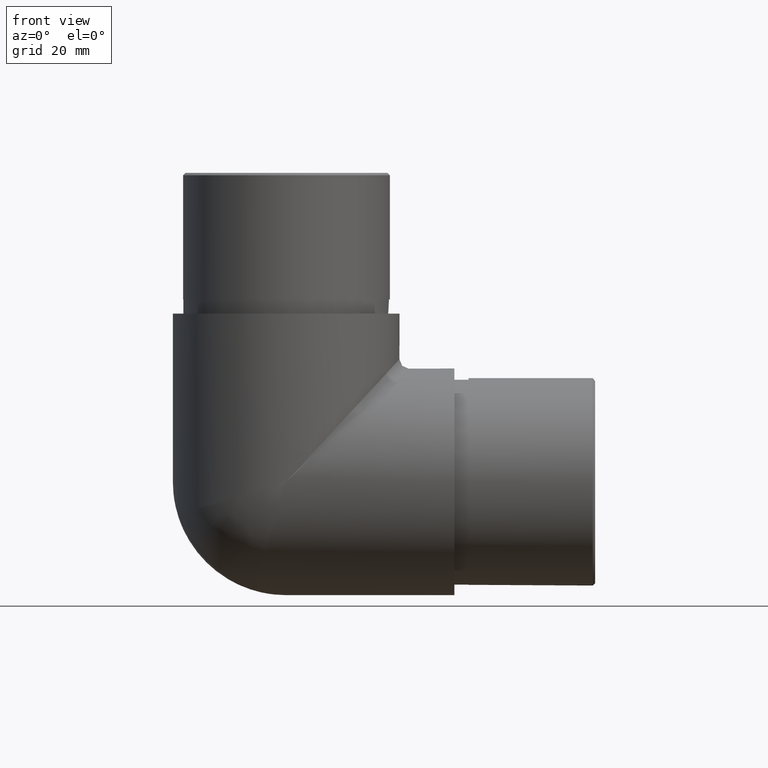
[diagram: clean part render]
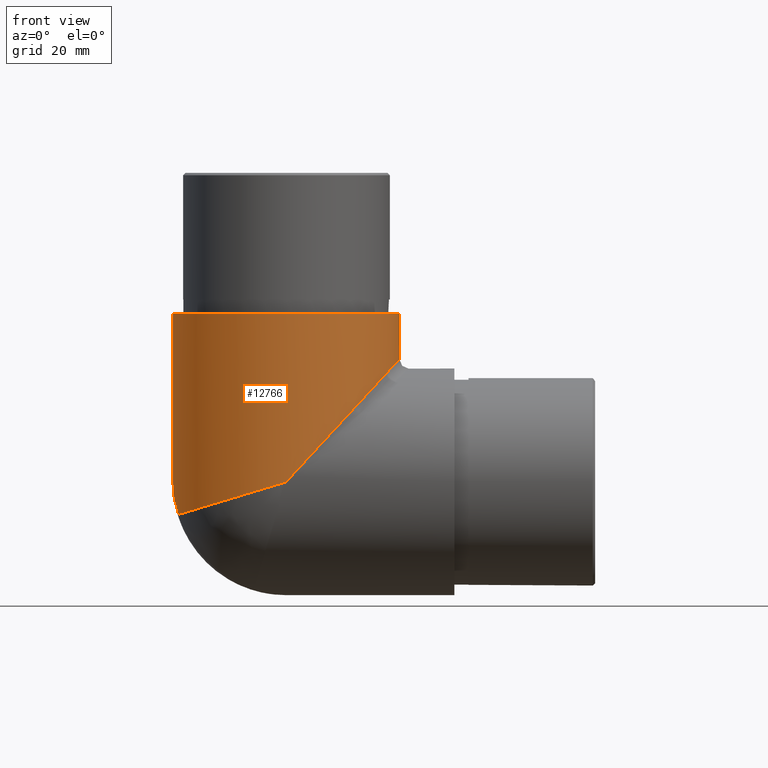
[diagram: same view with one face highlighted and labeled with its STEP entity id]
A machine part, front view. The second image highlights one B-rep face of the part: STEP entity #12766.
In plain terms, the highlighted cylindrical surface (bore or boss wall) has radius 24.15 mm, axis along (-0, -0, 1).
Its self-contained STEP definition (entity closure, byte-faithful):
#41 = EDGE_CURVE ( 'NONE', #6308, #9256, #8928, .T. ) ;
#47 = FACE_OUTER_BOUND ( 'NONE', #6972, .T. ) ;
#390 = ORIENTED_EDGE ( 'NONE', *, *, #41, .T. ) ;
#707 = CARTESIAN_POINT ( 'NONE',  ( -0.7969907250942667200, 59.10024825640454100, 61.99467875382930500 ) ) ;
#911 = ORIENTED_EDGE ( 'NONE', *, *, #5529, .T. ) ;
#913 = ORIENTED_EDGE ( 'NONE', *, *, #11484, .T. ) ;
#952 = VERTEX_POINT ( 'NONE', #11235 ) ;
#1018 = CARTESIAN_POINT ( 'NONE',  ( -10.80247203893955200, -2.330045524989888000E-011, 20.88465648512385200 ) ) ;
#1068 = ORIENTED_EDGE ( 'NONE', *, *, #1964, .T. ) ;
#1079 = VERTEX_POINT ( 'NONE', #2081 ) ;
#1484 = CARTESIAN_POINT ( 'NONE',  ( -24.15000000000001300, 24.14999999999999900, 24.14999999999998800 ) ) ;
#1964 = EDGE_CURVE ( 'NONE', #1079, #6308, #4802, .T. ) ;
#2081 = CARTESIAN_POINT ( 'NONE',  ( 17.07662876565511900, 41.22662876565512100, 42.64084232802818500 ) ) ;
#2139 = AXIS2_PLACEMENT_3D ( 'NONE', #5222, #11331, #4170 ) ;
#2753 = CARTESIAN_POINT ( 'NONE',  ( 17.07662876565511900, 41.22662876565512100, 42.64084232802818500 ) ) ;
#2847 = VERTEX_POINT ( 'NONE', #7813 ) ;
#3318 = CARTESIAN_POINT ( 'NONE',  ( -24.15000000000001300, 24.14999999999999900, 24.14999999999998800 ) ) ;
#3447 = ORIENTED_EDGE ( 'NONE', *, *, #8813, .T. ) ;
#3759 = CARTESIAN_POINT ( 'NONE',  ( -24.15000000000001300, 24.14999999999999900, 24.14999999999998800 ) ) ;
#3981 = CARTESIAN_POINT ( 'NONE',  ( -19.55517489869341600, 6.331160620435818000, 18.23891193538458600 ) ) ;
#4170 = DIRECTION ( 'NONE',  ( 1.000000000000000000, 0.0000000000000000000, 0.0000000000000000000 ) ) ;
#4230 = CIRCLE ( 'NONE', #10971, 24.15000000000000600 ) ;
#4271 = CARTESIAN_POINT ( 'NONE',  ( -22.93645766591655300, 16.59080627714714500, 17.21682646123431900 ) ) ;
#4802 =( BOUNDED_CURVE ( )  B_SPLINE_CURVE ( 3, ( #2753, #707, #8713, #3759 ),
 .UNSPECIFIED., .F., .F. ) 
 B_SPLINE_CURVE_WITH_KNOTS ( ( 4, 4 ),
 ( 5.497787143782138000, 7.853981633974482800 ),
 .UNSPECIFIED. ) 
 CURVE ( )  GEOMETRIC_REPRESENTATION_ITEM ( )  RATIONAL_B_SPLINE_CURVE ( ( 1.000000000000000000, 0.5884556215767264800, 0.5884556215767264800, 1.000000000000000000 ) ) 
 REPRESENTATION_ITEM ( '' )  );
#5053 =( BOUNDED_CURVE ( )  B_SPLINE_CURVE ( 3, ( #5192, #9349, #11304, #8379 ),
 .UNSPECIFIED., .F., .F. ) 
 B_SPLINE_CURVE_WITH_KNOTS ( ( 4, 4 ),
 ( 4.712388980385773300, 7.068583470577034500 ),
 .UNSPECIFIED. ) 
 CURVE ( )  GEOMETRIC_REPRESENTATION_ITEM ( )  RATIONAL_B_SPLINE_CURVE ( ( 1.000000000000000000, 0.5884556215770602200, 0.5884556215770602200, 1.000000000000000000 ) ) 
 REPRESENTATION_ITEM ( '' )  );
#5192 = CARTESIAN_POINT ( 'NONE',  ( 5.684341886080801500E-011, 3.469446951953614200E-015, 24.14999999999999100 ) ) ;
#5222 = CARTESIAN_POINT ( 'NONE',  ( 0.0000000000000000000, 24.15000000000000200, -44.15651506262050000 ) ) ;
#5279 =( BOUNDED_CURVE ( )  B_SPLINE_CURVE ( 3, ( #5962, #3981, #1018, #10013 ),
 .UNSPECIFIED., .F., .F. ) 
 B_SPLINE_CURVE_WITH_KNOTS ( ( 4, 4 ),
 ( 3.459953390461996100, 4.712388980386846200 ),
 .UNSPECIFIED. ) 
 CURVE ( )  GEOMETRIC_REPRESENTATION_ITEM ( )  RATIONAL_B_SPLINE_CURVE ( ( 1.000000000000000000, 0.8734999932205178600, 0.8734999932205178600, 1.000000000000000000 ) ) 
 REPRESENTATION_ITEM ( '' )  );
#5497 = CARTESIAN_POINT ( 'NONE',  ( -22.93645766591655300, 16.59080627714714500, 17.21682646123431900 ) ) ;
#5529 = EDGE_CURVE ( 'NONE', #2847, #2847, #4230, .T. ) ;
#5821 = CYLINDRICAL_SURFACE ( 'NONE', #2139, 24.15000000000000600 ) ;
#5962 = CARTESIAN_POINT ( 'NONE',  ( -22.93645766591655300, 16.59080627714714500, 17.21682646123431900 ) ) ;
#6308 = VERTEX_POINT ( 'NONE', #3318 ) ;
#6314 = DIRECTION ( 'NONE',  ( -1.000000000000000000, 0.0000000000000000000, 0.0000000000000000000 ) ) ;
#6972 = EDGE_LOOP ( 'NONE', ( #911 ) ) ;
#7322 = DIRECTION ( 'NONE',  ( 0.0000000000000000000, 0.0000000000000000000, -1.000000000000000000 ) ) ;
#7813 = CARTESIAN_POINT ( 'NONE',  ( -24.15000000000000600, 24.15000000000000200, 60.00000000000000000 ) ) ;
#8202 = CARTESIAN_POINT ( 'NONE',  ( 0.0000000000000000000, 24.15000000000000200, 60.00000000000000000 ) ) ;
#8379 = CARTESIAN_POINT ( 'NONE',  ( 17.07662876565511900, 41.22662876565512100, 42.64084232802818500 ) ) ;
#8713 = CARTESIAN_POINT ( 'NONE',  ( -24.14999999999999900, 49.42711509251390100, 51.52045795731832800 ) ) ;
#8813 = EDGE_CURVE ( 'NONE', #9256, #952, #5279, .T. ) ;
#8928 =( BOUNDED_CURVE ( )  B_SPLINE_CURVE ( 3, ( #1484, #9489, #11488, #5497 ),
 .UNSPECIFIED., .F., .F. ) 
 B_SPLINE_CURVE_WITH_KNOTS ( ( 4, 4 ),
 ( 1.570796326794896600, 1.889157063667099800 ),
 .UNSPECIFIED. ) 
 CURVE ( )  GEOMETRIC_REPRESENTATION_ITEM ( )  RATIONAL_B_SPLINE_CURVE ( ( 1.000000000000000000, 0.9915716893228323500, 0.9915716893228323500, 1.000000000000000000 ) ) 
 REPRESENTATION_ITEM ( '' )  );
#9097 = FACE_OUTER_BOUND ( 'NONE', #12641, .T. ) ;
#9256 = VERTEX_POINT ( 'NONE', #4271 ) ;
#9349 = CARTESIAN_POINT ( 'NONE',  ( 25.27711509252005200, 2.738507419695041600E-011, 51.52045795732500000 ) ) ;
#9489 = CARTESIAN_POINT ( 'NONE',  ( -24.14999999999999900, 21.57631342211324500, 21.78945516769390200 ) ) ;
#10013 = CARTESIAN_POINT ( 'NONE',  ( 5.684341886080801500E-011, 3.469446951953614200E-015, 24.14999999999999100 ) ) ;
#10971 = AXIS2_PLACEMENT_3D ( 'NONE', #8202, #7322, #6314 ) ;
#11235 = CARTESIAN_POINT ( 'NONE',  ( 5.684341886080801500E-011, 3.469446951953614200E-015, 24.14999999999999100 ) ) ;
#11304 = CARTESIAN_POINT ( 'NONE',  ( 34.95024825639038100, 23.35300927491987400, 61.99467875381399300 ) ) ;
#11331 = DIRECTION ( 'NONE',  ( -0.0000000000000000000, -0.0000000000000000000, 1.000000000000000000 ) ) ;
#11484 = EDGE_CURVE ( 'NONE', #952, #1079, #5053, .T. ) ;
#11488 = CARTESIAN_POINT ( 'NONE',  ( -23.74204753855224900, 19.03516458932261200, 19.45875344320891300 ) ) ;
#12641 = EDGE_LOOP ( 'NONE', ( #3447, #913, #1068, #390 ) ) ;
#12766 = ADVANCED_FACE ( 'NONE', ( #47, #9097 ), #5821, .T. ) ;